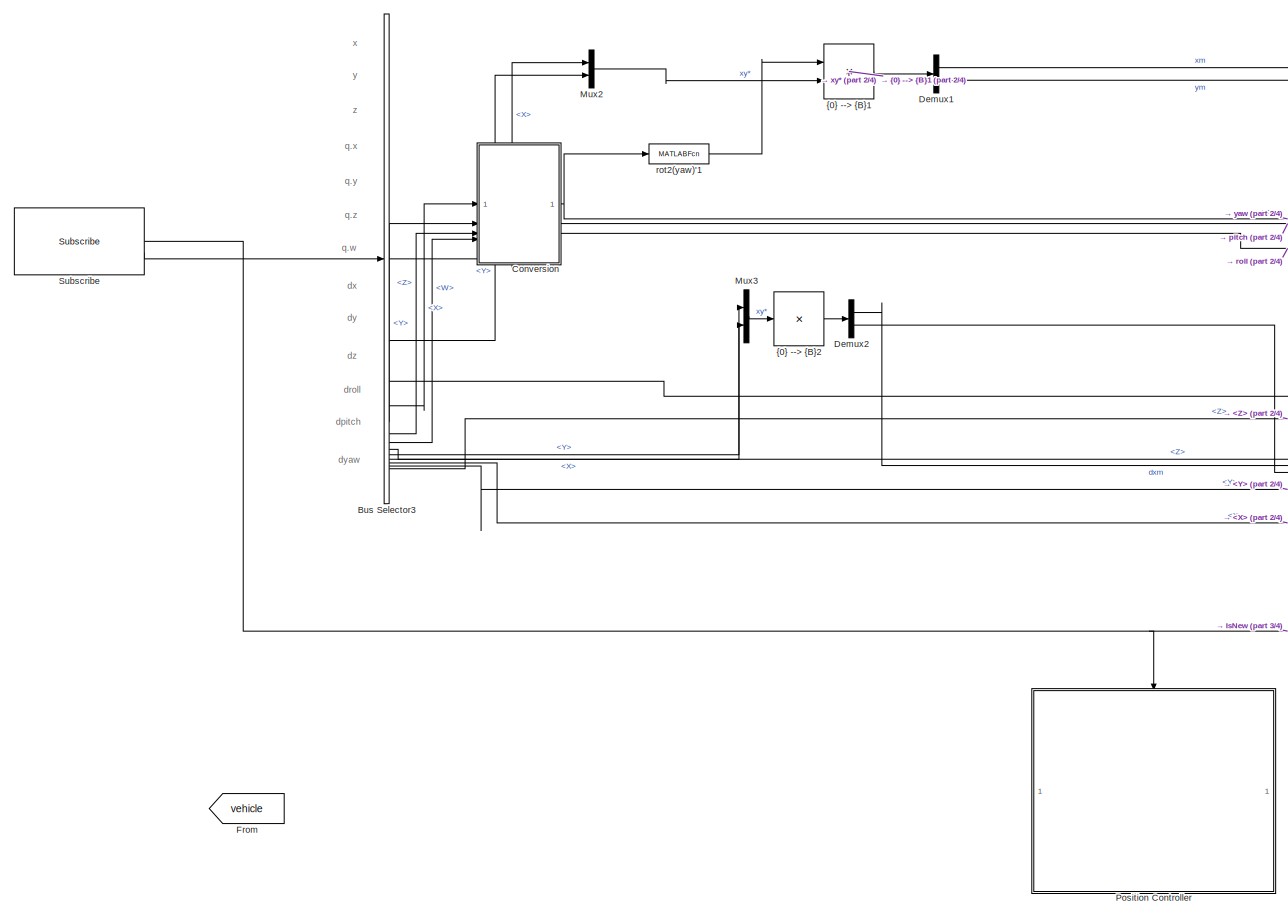
[diagram: root canvas - part 1/4, top left region]
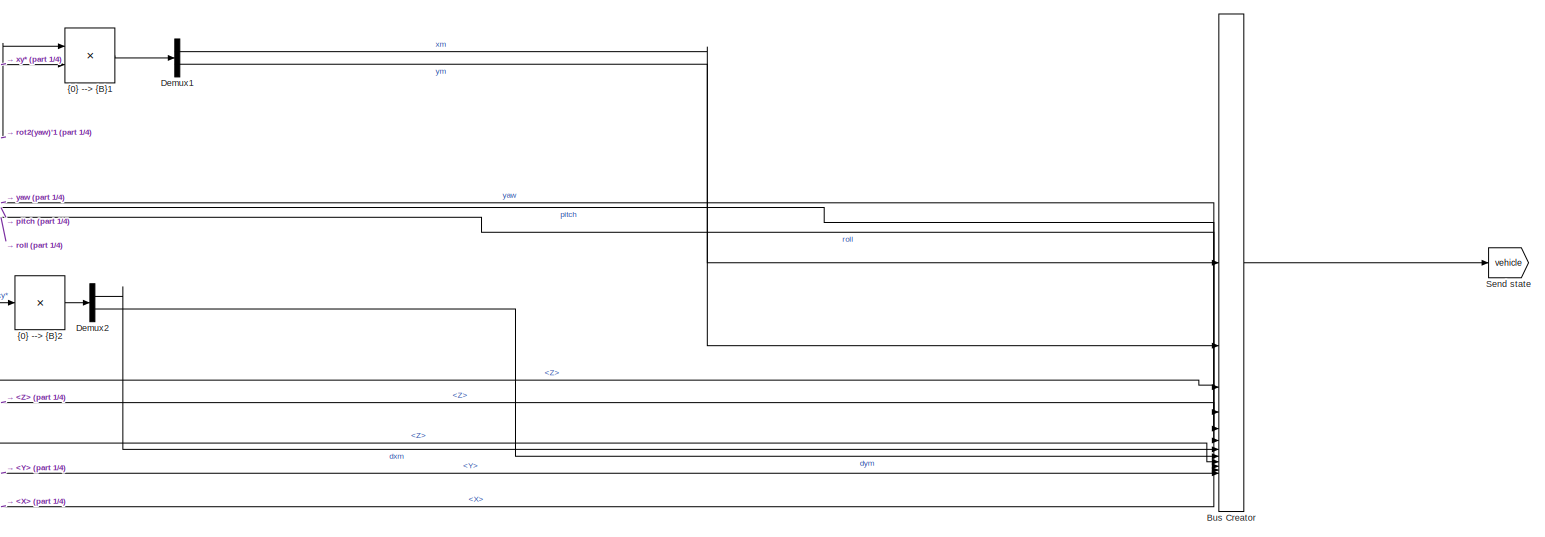
[diagram: root canvas - part 2/4, top center region]
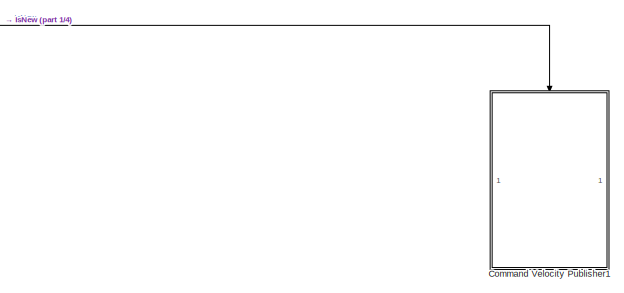
[diagram: root canvas - part 3/4, middle right region]
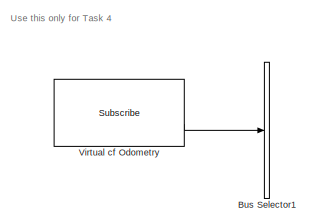
[diagram: root canvas - part 4/4, bottom left region]
MODEL slx_aab68ab2e8e8
KIND model
CONFIG AbsTol = auto
CONFIG EnableMultiTasking = on
CONFIG FixedStep = auto
CONFIG MaxStep = 0.1
CONFIG MinStep = auto
CONFIG PreLoadFcn = % load parameters of the default quadrotor\ndisp('Quadrotor parameters loaded by PreLoadFcn')\nmdl_quadrotor
CONFIG RelTol = 1e-3
CONFIG SampleTimeConstraint = Unconstrained
CONFIG SolverName = FixedStepAuto
CONFIG StartTime = 0.0
CONFIG StopTime = inf
BLOCK [BusCreator] Bus Creator
  DisplayOption = bar
  InheritFromInputs = on
  Inputs = 12
BLOCK [BusSelector] Bus Selector1
  OutputSignals = Pose.Pose.Position.X,Pose.Pose.Position.Y,Pose.Pose.Position.Z
BLOCK [BusSelector] Bus Selector3
  OutputSignals = Pose.Pose.Position.X,Pose.Pose.Position.Y,Pose.Pose.Position.Z,Pose.Pose.Orientation.X,Pose.Pose.Orientation.Y,Pose.Pose.Orientation.Z,Pose.Pose.Orientation.W,Twist.Twist.Linear.X,Twist.Twist.Linear.Y,Twist.Twist.Linear.Z,Twist.Twist.Angular.X,Twist.Twist.Angular.Y,Twist.Twist.Angular.Z
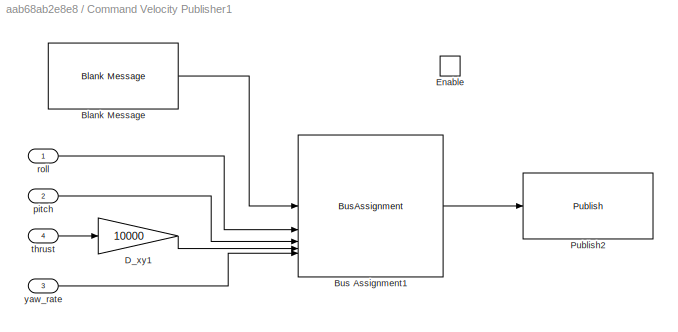
BLOCK [SubSystem] Command Velocity Publisher1
BLOCK [Reference] Command Velocity Publisher1/Blank Message  REF=robotlib/Blank Message
  SourceBlock = robotlib/Blank Message
  SourceType = ROS Blank Message
BLOCK [BusAssignment] Command Velocity Publisher1/Bus Assignment1
  AssignedSignals = Linear.X,Linear.Y,Linear.Z,Angular.Z
  DialogController = Simulink.DDGSource_BusAssignment
BLOCK [Gain] Command Velocity Publisher1/D_xy1
  Gain = 10000
BLOCK [EnablePort] Command Velocity Publisher1/Enable
BLOCK [Reference] Command Velocity Publisher1/Publish2  REF=robotlib/Publish
  AttributesFormatString = %<messageType>
  SourceBlock = robotlib/Publish
  SourceType = ROS Publish
BLOCK [Inport] Command Velocity Publisher1/pitch
  Port = 2
BLOCK [Inport] Command Velocity Publisher1/roll
BLOCK [Inport] Command Velocity Publisher1/thrust
  Port = 4
BLOCK [Inport] Command Velocity Publisher1/yaw_rate
  Port = 3
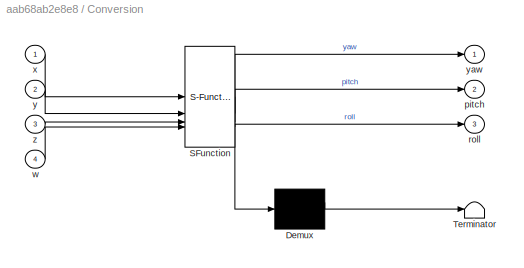
BLOCK [SubSystem] Conversion
  ErrorFcn = Stateflow.Translate.translate
  PermitHierarchicalResolution = ExplicitOnly
  SFBlockType = MATLAB Function
  TreatAsAtomicUnit = on
BLOCK [Demux] Conversion/ Demux 
  Outputs = 1
BLOCK [S-Function] Conversion/ SFunction 
  EnableBusSupport = on
  FunctionName = sf_sfun
  PortCounts = [4 4]
  SFcnIsStateOwnerBlock = off
  SFunctionDeploymentMode = off
  Tag = Stateflow S-Function 1
BLOCK [Terminator] Conversion/ Terminator 
BLOCK [Outport] Conversion/pitch
  Port = 2
  VectorParamsAs1DForOutWhenUnconnected = off
BLOCK [Outport] Conversion/roll
  Port = 3
  VectorParamsAs1DForOutWhenUnconnected = off
BLOCK [Inport] Conversion/w
  Port = 4
BLOCK [Inport] Conversion/x
BLOCK [Inport] Conversion/y
  Port = 2
BLOCK [Outport] Conversion/yaw
  VectorParamsAs1DForOutWhenUnconnected = off
BLOCK [Inport] Conversion/z
  Port = 3
BLOCK [Demux] Demux1
  Outputs = 2
BLOCK [Demux] Demux2
  Outputs = 2
BLOCK [From] From
  GotoTag = vehicle
  TagVisibility = global
BLOCK [Mux] Mux2
  DisplayOption = bar
  Inputs = 2
BLOCK [Mux] Mux3
  DisplayOption = bar
  Inputs = 2
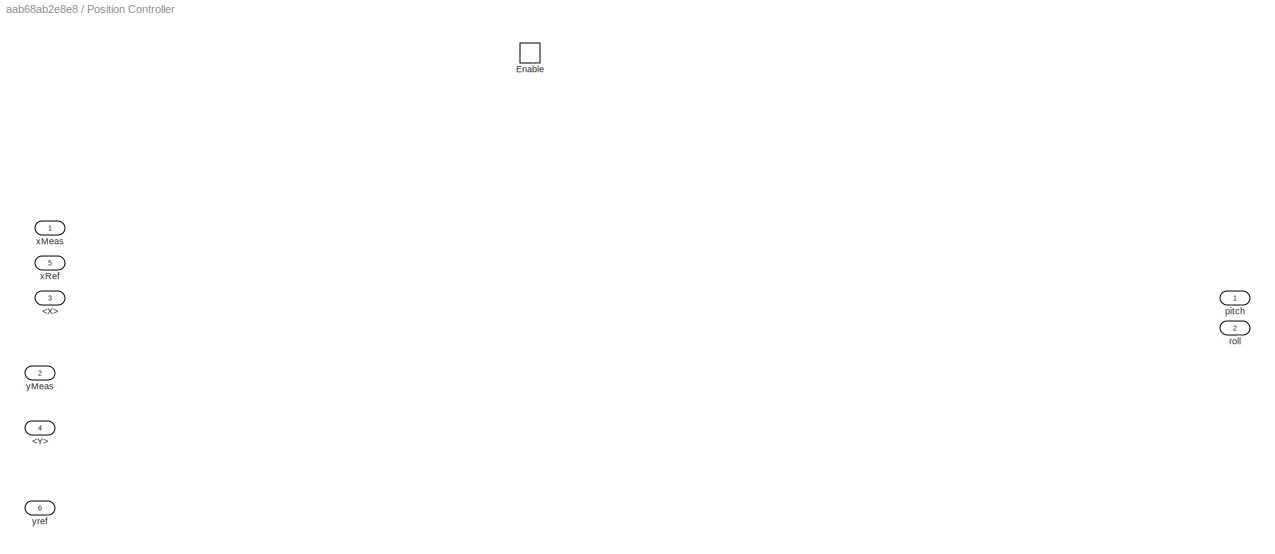
BLOCK [SubSystem] Position  Controller
BLOCK [Inport] Position  Controller/<X>
  Port = 3
BLOCK [Inport] Position  Controller/<Y>
  Port = 4
BLOCK [EnablePort] Position  Controller/Enable
BLOCK [Outport] Position  Controller/pitch
BLOCK [Outport] Position  Controller/roll
  Port = 2
BLOCK [Inport] Position  Controller/xMeas
BLOCK [Inport] Position  Controller/xRef
  Port = 5
BLOCK [Inport] Position  Controller/yMeas
  Port = 2
BLOCK [Inport] Position  Controller/yref
  Port = 6
BLOCK [Goto] Send state
  GotoTag = vehicle
  IconDisplay = Tag and signal name
  TagVisibility = global
BLOCK [Reference] Subscribe  REF=robotlib/Subscribe
  SourceBlock = robotlib/Subscribe
  SourceType = ROS Subscribe
BLOCK [Reference] Virtual cf Odometry  REF=robotlib/Subscribe
  SourceBlock = robotlib/Subscribe
  SourceType = ROS Subscribe
BLOCK [MATLABFcn] rot2(yaw)'1
  MATLABFcn = rot2(u)'
  Output1D = off
  OutputDimensions = [2 2]
BLOCK [Product] {0} --> {B}1
  Multiplication = Matrix(*)
  RndMeth = Zero
BLOCK [Product] {0} --> {B}2
  Inputs = 1
  Multiplication = Matrix(*)
  RndMeth = Zero
ANNOTATION (root): Use this only for Task 4
ANNOTATION (root): dpitch
ANNOTATION (root): droll
ANNOTATION (root): dx
ANNOTATION (root): dy
ANNOTATION (root): dyaw
ANNOTATION (root): dz
ANNOTATION (root): q.w
ANNOTATION (root): q.x
ANNOTATION (root): q.y
ANNOTATION (root): q.z
ANNOTATION (root): x
ANNOTATION (root): y
ANNOTATION (root): z
LINE Bus Creator:1 -> Send state:1
LINE Bus Selector3:1 -> Mux2:1
LINE Bus Selector3:10 -> Bus Creator:9
LINE Bus Selector3:11 -> Bus Creator:11
LINE Bus Selector3:12 -> Bus Creator:12
LINE Bus Selector3:13 -> Bus Creator:10
LINE Bus Selector3:2 -> Mux2:2
LINE Bus Selector3:3 -> Bus Creator:3
LINE Bus Selector3:4 -> Conversion:1
LINE Bus Selector3:5 -> Conversion:2
LINE Bus Selector3:6 -> Conversion:3
LINE Bus Selector3:7 -> Conversion:4
LINE Bus Selector3:8 -> Mux3:1
LINE Bus Selector3:9 -> Mux3:2
LINE Command Velocity Publisher1/Blank Message:1 -> Command Velocity Publisher1/Bus Assignment1:1
LINE Command Velocity Publisher1/Bus Assignment1:1 -> Command Velocity Publisher1/Publish2:1
LINE Command Velocity Publisher1/D_xy1:1 -> Command Velocity Publisher1/Bus Assignment1:4
LINE Command Velocity Publisher1/pitch:1 -> Command Velocity Publisher1/Bus Assignment1:3
LINE Command Velocity Publisher1/roll:1 -> Command Velocity Publisher1/Bus Assignment1:2
LINE Command Velocity Publisher1/thrust:1 -> Command Velocity Publisher1/D_xy1:1
LINE Command Velocity Publisher1/yaw_rate:1 -> Command Velocity Publisher1/Bus Assignment1:5
NET Conversion:1 -> Bus Creator:4, rot2(yaw)'1:1
LINE Conversion:2 -> Bus Creator:5
LINE Conversion:3 -> Bus Creator:6
LINE Demux1:1 -> Bus Creator:1
LINE Demux1:2 -> Bus Creator:2
LINE Demux2:1 -> Bus Creator:7
LINE Demux2:2 -> Bus Creator:8
LINE Mux2:1 -> {0} --> {B}1:2
LINE Mux3:1 -> {0} --> {B}2:1
NET Subscribe:1 -> Command Velocity Publisher1:enable, Position  Controller:enable
LINE Subscribe:2 -> Bus Selector3:1
LINE Virtual cf Odometry:2 -> Bus Selector1:1
LINE rot2(yaw)'1:1 -> {0} --> {B}1:1
LINE {0} --> {B}1:1 -> Demux1:1
LINE {0} --> {B}2:1 -> Demux2:1
note: NET lines group one-source signal fan-out (src -> all destinations, sorted); 1:1 wires keep LINE
CHART Conversion states=1 transitions=1
  STATE_LABEL 'eML_blk_kernel()'
  STATE_LABEL 'SCRIPT:\nfunction [yaw,pitch,roll]  = quat2eul(x,y,z,w)\n%#codegen\n\n% Convert the quaternion to a yaw angle (zyx euler angle)\neul = quat2eul([w,x,y,z]);\nyaw = eul(1);\nroll = eul(3);\npitch = eul(2);\n\nend\n'
CHART  states=0 transitions=0
